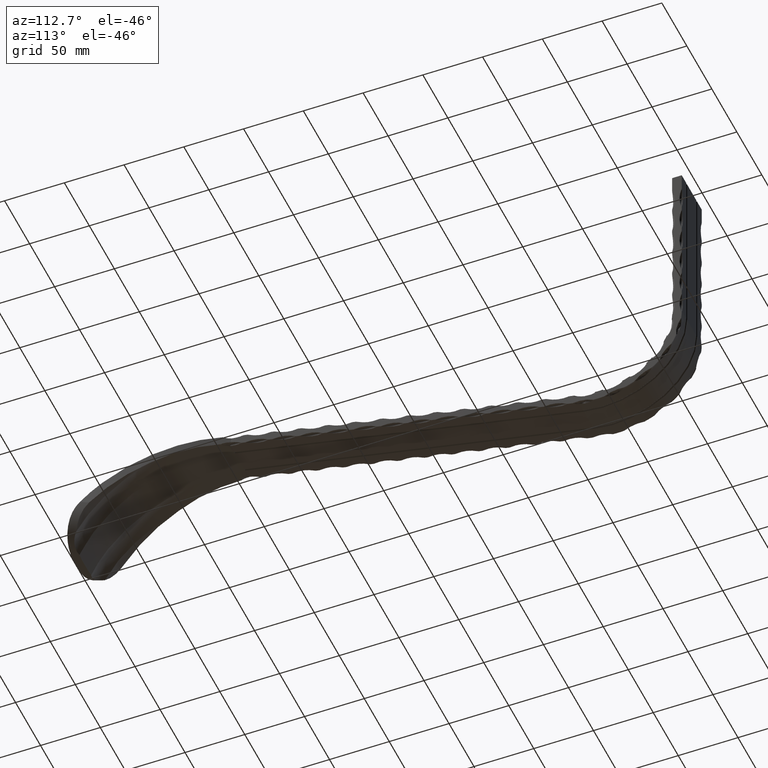
[diagram: clean part render]
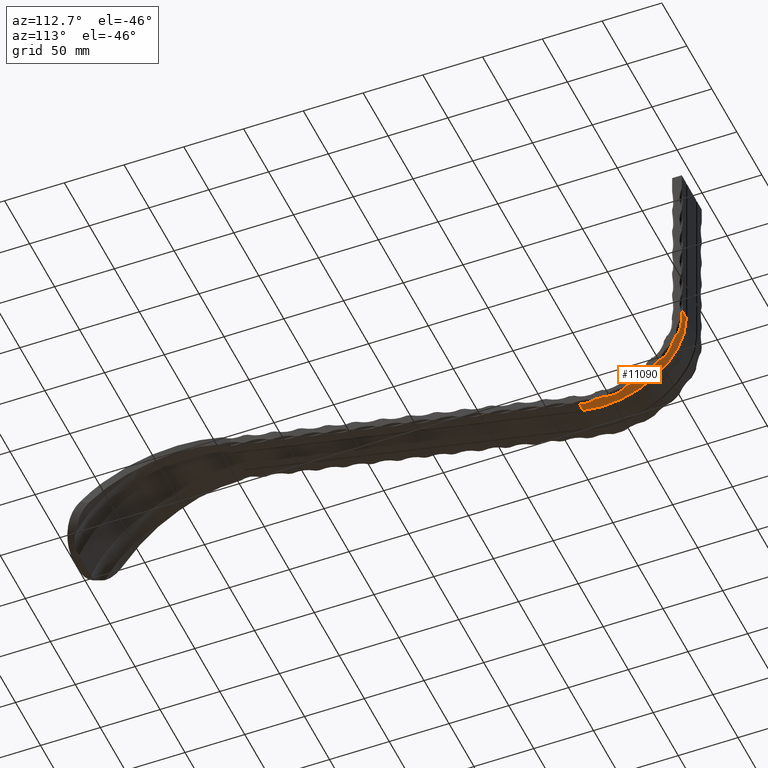
[diagram: same view with one face highlighted and labeled with its STEP entity id]
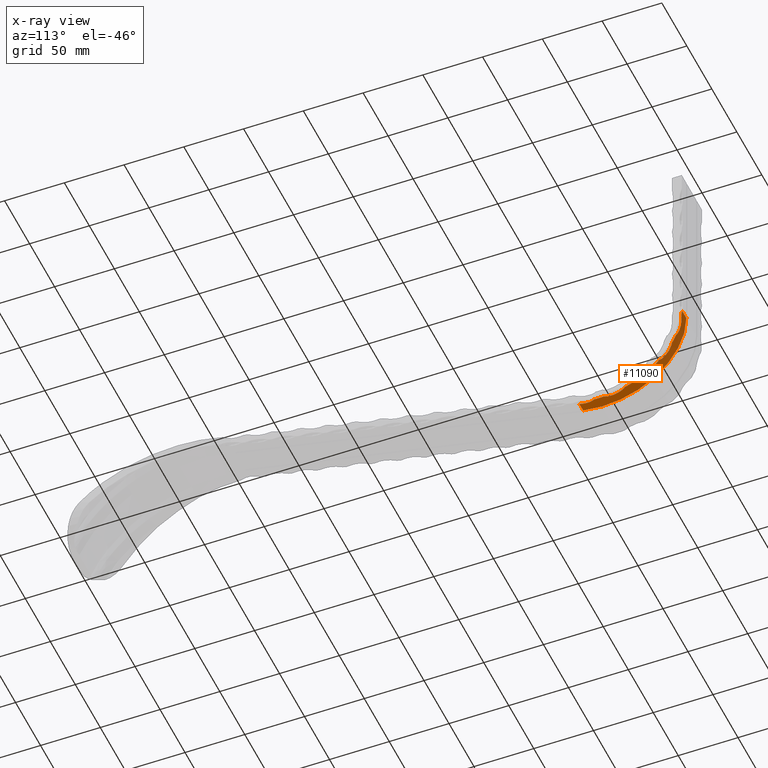
[diagram: x-ray of the same camera — body ghosted, the highlighted face saturated]
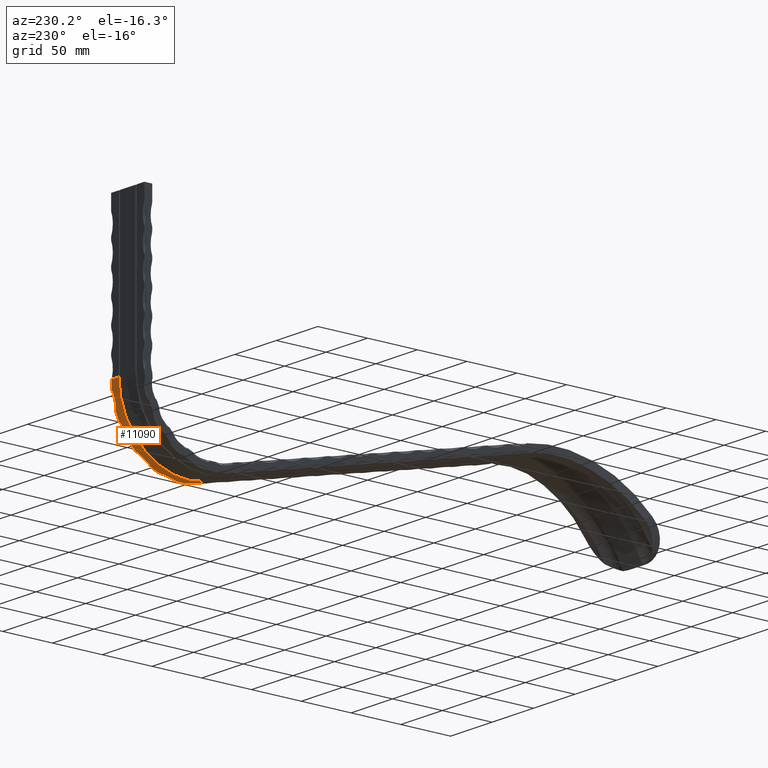
[diagram: same view with one face highlighted and labeled with its STEP entity id]
A machine part, auxiliary view. The second image highlights one B-rep face of the part: STEP entity #11090.
The next image is the same camera in x-ray: the body ghosted, the highlighted face saturated — about 0% of this face is hidden behind the body in this view.
A second angle (auxiliary view) of the same face is appended — the face is thin or edge-on in the first view.
In plain terms, the highlighted cylindrical surface (partial cylindrical patch) has radius 70 mm, axis along (-1, -0, -0).
Its self-contained STEP definition (entity closure, byte-faithful):
#76 = DIRECTION ( 'NONE',  ( -1.000000000000000000, -0.0000000000000000000, -0.0000000000000000000 ) ) ;
#84 = CARTESIAN_POINT ( 'NONE',  ( 18.03167442573956700, 493.7581213170564100, 19.74199533702874000 ) ) ;
#173 = CARTESIAN_POINT ( 'NONE',  ( 18.70264538539854400, 497.9053867037239300, 25.95573783965676600 ) ) ;
#237 = VERTEX_POINT ( 'NONE', #2260 ) ;
#302 = ORIENTED_EDGE ( 'NONE', *, *, #3026, .F. ) ;
#446 = CARTESIAN_POINT ( 'NONE',  ( 18.26275306050521900, 472.4639169216942500, 0.9014787258016056000 ) ) ;
#580 = VERTEX_POINT ( 'NONE', #777 ) ;
#597 = CARTESIAN_POINT ( 'NONE',  ( 19.78127151038886200, 442.9167374544678600, -8.146817677258066900 ) ) ;
#656 = CARTESIAN_POINT ( 'NONE',  ( 19.62175395953163800, 468.3875011450474500, -1.252231188625722200 ) ) ;
#706 = CARTESIAN_POINT ( 'NONE',  ( 18.26275306050522600, 447.6774465494257200, -7.630056567092245800 ) ) ;
#734 = CARTESIAN_POINT ( 'NONE',  ( 19.90381115990523500, 503.0257769059716100, 36.53335729489184300 ) ) ;
#759 = CARTESIAN_POINT ( 'NONE',  ( 18.53221570208327100, 456.4705758580688600, -5.779927733336522000 ) ) ;
#777 = CARTESIAN_POINT ( 'NONE',  ( 10.75000000000000000, 507.6900000000001700, 61.65778339167194100 ) ) ;
#783 = CARTESIAN_POINT ( 'NONE',  ( 19.90492214855152400, 507.1797226143675100, 53.22102053503797900 ) ) ;
#884 = CARTESIAN_POINT ( 'NONE',  ( 18.00057065333493600, 505.9815152250794800, 46.21376367742050900 ) ) ;
#948 = CARTESIAN_POINT ( 'NONE',  ( 20.00000000000000000, 468.1442942359648200, -1.370273555923187600 ) ) ;
#1009 = B_SPLINE_CURVE_WITH_KNOTS ( 'NONE', 3,
 ( #12869, #9251, #11775, #5675, #14023, #8287, #15209, #14123, #7030, #8120, #6871, #3456, #9347, #11718, #9296, #10486 ),
 .UNSPECIFIED., .F., .F.,
 ( 4, 2, 2, 2, 2, 2, 2, 4 ),
 ( 1.971829358141358600E-007, 2.935465878221215900E-005, 5.851213462861017900E-005, 0.0001168270863214134500, 0.0002334569897070199500, 0.0004667167964782203900, 0.0009332364100206250300, 0.001866275637105411100 ),
 .UNSPECIFIED. ) ;
#1025 = CARTESIAN_POINT ( 'NONE',  ( 19.57975049274751100, 433.4101195148701900, -8.211337864998848000 ) ) ;
#1084 = CARTESIAN_POINT ( 'NONE',  ( 18.15389672651034700, 422.3512582478904800, -6.643153942380054700 ) ) ;
#1105 = VERTEX_POINT ( 'NONE', #3404 ) ;
#1229 = EDGE_CURVE ( 'NONE', #13801, #5685, #1812, .T. ) ;
#1249 = CARTESIAN_POINT ( 'NONE',  ( 18.40420769604775200, 429.7987011322817900, -7.903987248742868000 ) ) ;
#1259 = CIRCLE ( 'NONE', #9733, 70.00000000000011400 ) ;
#1297 = CARTESIAN_POINT ( 'NONE',  ( 19.15727855630744600, 490.0031536792042700, 15.14482472785034700 ) ) ;
#1435 = CARTESIAN_POINT ( 'NONE',  ( 18.53312681230864100, 491.4328073049839000, 16.79951193914794800 ) ) ;
#1486 = CARTESIAN_POINT ( 'NONE',  ( 19.03385567074038000, 490.2431254470228600, 15.41602179538416800 ) ) ;
#1556 = CARTESIAN_POINT ( 'NONE',  ( 20.00000000000000000, 468.1442942359648200, -1.370273555923187600 ) ) ;
#1643 = VERTEX_POINT ( 'NONE', #948 ) ;
#1662 = CARTESIAN_POINT ( 'NONE',  ( 19.38758525809123500, 482.0926544388397000, 7.542770196508414800 ) ) ;
#1679 = CARTESIAN_POINT ( 'NONE',  ( 0.0000000000000000000, 437.6900000000000500, 61.65778339167199100 ) ) ;
#1764 = CARTESIAN_POINT ( 'NONE',  ( 18.12675820066717200, 478.1643765698373200, 4.525966628627752900 ) ) ;
#1812 = CIRCLE ( 'NONE', #14246, 70.00000000000011400 ) ;
#1814 = CARTESIAN_POINT ( 'NONE',  ( 19.68073267968736300, 459.5389641668033400, -4.845052052841795700 ) ) ;
#1819 = CARTESIAN_POINT ( 'NONE',  ( 18.70180800693928400, 470.5152956813728900, -0.1728401095036623300 ) ) ;
#1888 = CARTESIAN_POINT ( 'NONE',  ( 19.62467312767871200, 507.1489756684266600, 52.97117877660860300 ) ) ;
#2200 = VECTOR ( 'NONE', #3069, 1000.000000000000000 ) ;
#2218 = AXIS2_PLACEMENT_3D ( 'NONE', #3466, #11584, #9309 ) ;
#2251 = EDGE_CURVE ( 'NONE', #3416, #5685, #5475, .T. ) ;
#2260 = CARTESIAN_POINT ( 'NONE',  ( 19.99999999999998200, 507.1814705745103400, 53.23546082648905300 ) ) ;
#2295 = EDGE_CURVE ( 'NONE', #3244, #11110, #9186, .T. ) ;
#2341 = CARTESIAN_POINT ( 'NONE',  ( 19.86497682918189200, 433.7035627344738500, -8.228624445789497700 ) ) ;
#2378 = ORIENTED_EDGE ( 'NONE', *, *, #2295, .F. ) ;
#2398 = CARTESIAN_POINT ( 'NONE',  ( 19.32091287299523700, 432.9262264347052600, -8.180356511893469600 ) ) ;
#2412 = ORIENTED_EDGE ( 'NONE', *, *, #1229, .T. ) ;
#2494 = CARTESIAN_POINT ( 'NONE',  ( 19.47034978343860300, 498.9684013530700800, 27.82018403542123200 ) ) ;
#2510 = CARTESIAN_POINT ( 'NONE',  ( 20.00000000000000000, 489.1932475859985100, 14.25086946453094100 ) ) ;
#2630 = CARTESIAN_POINT ( 'NONE',  ( 19.33637270488110400, 507.6900000000001700, 61.65778339167193400 ) ) ;
#2802 = CARTESIAN_POINT ( 'NONE',  ( 18.16308221534285000, 473.1177649764647400, 1.280295989178122000 ) ) ;
#2908 = CARTESIAN_POINT ( 'NONE',  ( 19.90381115990524900, 468.1577466635085900, -1.363775965802723300 ) ) ;
#3006 = CARTESIAN_POINT ( 'NONE',  ( 19.38498948339167100, 443.5066674613226500, -8.100346761923811200 ) ) ;
#3026 = EDGE_CURVE ( 'NONE', #10350, #237, #6136, .T. ) ;
#3061 = CARTESIAN_POINT ( 'NONE',  ( 19.46704466986765400, 443.3359412693523600, -8.114341352790228600 ) ) ;
#3069 = DIRECTION ( 'NONE',  ( 1.000000000000000000, 0.0000000000000000000, 0.0000000000000000000 ) ) ;
#3083 = CARTESIAN_POINT ( 'NONE',  ( 19.03606639801702400, 506.9772258525497900, 51.68719931765517800 ) ) ;
#3096 = EDGE_LOOP ( 'NONE', ( #4867, #10883, #7338, #11572, #7244, #13842, #302, #8733, #2378, #6339, #14430, #8111, #3192, #2412 ) ) ;
#3133 = CARTESIAN_POINT ( 'NONE',  ( 19.38758525809123900, 507.0968223199672000, 52.56254344034406500 ) ) ;
#3160 = CARTESIAN_POINT ( 'NONE',  ( 18.12675820066717900, 454.3114705292674100, -6.356526593857835500 ) ) ;
#3185 = CARTESIAN_POINT ( 'NONE',  ( 19.67839134938319700, 503.0891871292445800, 36.69880139969850300 ) ) ;
#3192 = ORIENTED_EDGE ( 'NONE', *, *, #8656, .F. ) ;
#3244 = VERTEX_POINT ( 'NONE', #2510 ) ;
#3277 = CARTESIAN_POINT ( 'NONE',  ( 17.99971747862231900, 505.4384699251467600, 44.03089989034423700 ) ) ;
#3284 = VECTOR ( 'NONE', #11442, 1000.000000000000000 ) ;
#3404 = CARTESIAN_POINT ( 'NONE',  ( 19.99999999999998200, 482.6147371528002200, 7.975682168342098400 ) ) ;
#3416 = VERTEX_POINT ( 'NONE', #4195 ) ;
#3456 = CARTESIAN_POINT ( 'NONE',  ( 19.75367472563789700, 507.6805401092514700, 60.49812099284333300 ) ) ;
#3466 = CARTESIAN_POINT ( 'NONE',  ( 20.00000000000000000, 437.6900000000000500, 61.65778339167199100 ) ) ;
#3561 = DIRECTION ( 'NONE',  ( 0.0000000000000000000, 0.0000000000000000000, 1.000000000000000000 ) ) ;
#3568 = CARTESIAN_POINT ( 'NONE',  ( 18.01927849666384400, 426.6197226748236100, -7.469624302031332900 ) ) ;
#3674 = CARTESIAN_POINT ( 'NONE',  ( 19.99999999999998200, 499.2113705855200600, 28.26435647440083100 ) ) ;
#3868 = CARTESIAN_POINT ( 'NONE',  ( 19.15915364054227900, 498.6301312694313900, 27.21330780885399400 ) ) ;
#3985 = CARTESIAN_POINT ( 'NONE',  ( 18.70264538539853300, 480.5511185345369000, 6.309311231678822900 ) ) ;
#3988 = CARTESIAN_POINT ( 'NONE',  ( 20.00000000000000000, 437.6900000000000500, 61.65778339167199100 ) ) ;
#4044 = CARTESIAN_POINT ( 'NONE',  ( 10.75000000000000000, 421.2985749661347100, -6.396027562301617800 ) ) ;
#4090 = CARTESIAN_POINT ( 'NONE',  ( 18.00057065333493600, 476.9359758300341800, 3.675008554485857300 ) ) ;
#4160 = DIRECTION ( 'NONE',  ( -1.000000000000000000, -0.0000000000000000000, -0.0000000000000000000 ) ) ;
#4188 = CARTESIAN_POINT ( 'NONE',  ( 19.62175395953163100, 443.0946124631734100, -8.133309701690343700 ) ) ;
#4195 = CARTESIAN_POINT ( 'NONE',  ( 18.30542934712605800, 421.2985749661348200, -6.396027562301648000 ) ) ;
#4292 = CARTESIAN_POINT ( 'NONE',  ( 19.03385567074036500, 444.3878851572125100, -8.021982998573825800 ) ) ;
#4341 = CARTESIAN_POINT ( 'NONE',  ( 19.81939216052111900, 442.8858792114269200, -8.149117197164523300 ) ) ;
#4368 = CARTESIAN_POINT ( 'NONE',  ( 19.46704466986766100, 503.2028493167686100, 36.99824936176514000 ) ) ;
#4765 = AXIS2_PLACEMENT_3D ( 'NONE', #4987, #9686, #14425 ) ;
#4867 = ORIENTED_EDGE ( 'NONE', *, *, #2251, .F. ) ;
#4987 = CARTESIAN_POINT ( 'NONE',  ( 20.00000000000000000, 437.6900000000000500, 61.65778339167199100 ) ) ;
#5166 = CARTESIAN_POINT ( 'NONE',  ( 19.78321635419198500, 482.5454379656069900, 7.917753858332821100 ) ) ;
#5218 = DIRECTION ( 'NONE',  ( -1.000000000000000000, -0.0000000000000000000, -0.0000000000000000000 ) ) ;
#5265 = CARTESIAN_POINT ( 'NONE',  ( 19.99999999999998200, 482.6147371528002200, 7.975682168342098400 ) ) ;
#5322 = CARTESIAN_POINT ( 'NONE',  ( 20.00000000001525900, 433.7338929098946800, -8.230335889731156500 ) ) ;
#5366 = CARTESIAN_POINT ( 'NONE',  ( 19.15915364054225700, 481.6876330651896900, 7.212124409786276200 ) ) ;
#5384 = CARTESIAN_POINT ( 'NONE',  ( 19.03385567074036200, 503.5680935415686000, 37.98906350430160500 ) ) ;
#5412 = CARTESIAN_POINT ( 'NONE',  ( 20.00000000000000000, 442.8250363522155900, -8.153615402947803400 ) ) ;
#5475 = B_SPLINE_CURVE_WITH_KNOTS ( 'NONE', 3,
 ( #15220, #13086, #1084, #12880, #5988, #12931, #3568, #8350, #1249, #5886, #5827, #9508, #2398, #9307, #1025, #13034, #14133, #2341, #9357, #9459 ),
 .UNSPECIFIED., .F., .F.,
 ( 4, 2, 2, 2, 2, 2, 2, 2, 2, 4 ),
 ( 2.078439718499319400E-007, 0.001636354094448594100, 0.003272500344925338100, 0.006544792845878826800, 0.009817085346832312600, 0.01145323159730905800, 0.01227130472254742800, 0.01268034128516668700, 0.01288485956647625200, 0.01308937784778581700 ),
 .UNSPECIFIED. ) ;
#5496 = CARTESIAN_POINT ( 'NONE',  ( 20.00000000000000000, 503.0204098164136300, 36.51941524217824800 ) ) ;
#5522 = EDGE_CURVE ( 'NONE', #3244, #1105, #14515, .T. ) ;
#5525 = CARTESIAN_POINT ( 'NONE',  ( 18.70180800693929900, 445.4702681110720700, -7.912278181058683300 ) ) ;
#5601 = CARTESIAN_POINT ( 'NONE',  ( 19.38498948339166000, 503.2630266840039300, 37.15863005159642500 ) ) ;
#5634 = VERTEX_POINT ( 'NONE', #4044 ) ;
#5675 = CARTESIAN_POINT ( 'NONE',  ( 19.97451823923584200, 507.6695157576918400, 59.96443114431196600 ) ) ;
#5685 = VERTEX_POINT ( 'NONE', #5322 ) ;
#5827 = CARTESIAN_POINT ( 'NONE',  ( 18.93784867515258300, 431.8993635348177200, -8.104203275610947400 ) ) ;
#5886 = CARTESIAN_POINT ( 'NONE',  ( 18.78897922439004700, 431.3732760632299200, -8.058621649171744400 ) ) ;
#5988 = CARTESIAN_POINT ( 'NONE',  ( 18.02378694886902700, 423.9480673143916600, -6.982265885177447700 ) ) ;
#6136 = B_SPLINE_CURVE_WITH_KNOTS ( 'NONE', 3,
 ( #5496, #6581, #734, #10259, #12693, #3185, #11443, #4368, #5601, #12637, #5384, #14871, #9125, #15080, #10366, #7891, #3277, #884, #7788, #11544, #7992, #3083, #12584, #3133, #13787, #1888, #13892, #10149, #10201, #783, #13737, #11340 ),
 .UNSPECIFIED., .F., .F.,
 ( 4, 2, 2, 2, 2, 2, 2, 2, 2, 2, 2, 2, 2, 2, 2, 4 ),
 ( 1.968283070141940700E-007, 0.0001445492493039845800, 0.0002889016703009549200, 0.0005776065122948956700, 0.001155016196282660700, 0.002309835564258087400, 0.004619474300209067800, 0.006929113036160048700, 0.009238751772111027800, 0.01385802924401299100, 0.01616766797996399900, 0.01732248734793950100, 0.01789989703192724000, 0.01818860187392111500, 0.01833295429491804300, 0.01847730671591497200 ),
 .UNSPECIFIED. ) ;
#6183 = CARTESIAN_POINT ( 'NONE',  ( 18.12675820066717600, 496.3419610145002100, 23.41948956837762500 ) ) ;
#6331 = AXIS2_PLACEMENT_3D ( 'NONE', #3988, #5218, #14762 ) ;
#6339 = ORIENTED_EDGE ( 'NONE', *, *, #5522, .T. ) ;
#6348 = CARTESIAN_POINT ( 'NONE',  ( 19.90492214855153500, 482.6035836404405500, 7.966345330338997500 ) ) ;
#6403 = CARTESIAN_POINT ( 'NONE',  ( 19.78127151038884400, 468.2270657079516200, -1.330221281905768800 ) ) ;
#6425 = DIRECTION ( 'NONE',  ( 0.0000000000000000000, 0.0000000000000000000, 1.000000000000000000 ) ) ;
#6485 = EDGE_CURVE ( 'NONE', #1643, #11335, #11692, .T. ) ;
#6488 = CARTESIAN_POINT ( 'NONE',  ( 20.00000000000000000, 437.6900000000000500, 61.65778339167199100 ) ) ;
#6498 = CARTESIAN_POINT ( 'NONE',  ( 19.82086340258193100, 459.6617937077201100, -4.804542762219116800 ) ) ;
#6581 = CARTESIAN_POINT ( 'NONE',  ( 19.95111066697486300, 503.0204098164136300, 36.51941524217822600 ) ) ;
#6713 = CARTESIAN_POINT ( 'NONE',  ( 19.90492214855153800, 459.7049460854716500, -4.790261465754688300 ) ) ;
#6871 = CARTESIAN_POINT ( 'NONE',  ( 19.83875509575381100, 507.6765405905500200, 60.28327745015237600 ) ) ;
#6927 = EDGE_CURVE ( 'NONE', #10350, #11110, #13361, .T. ) ;
#7030 = CARTESIAN_POINT ( 'NONE',  ( 19.91154841726825400, 507.6727842315722200, 60.10498618726213500 ) ) ;
#7090 = CARTESIAN_POINT ( 'NONE',  ( 19.81939216052110500, 489.2345485854785900, 14.29577285877045000 ) ) ;
#7176 = CIRCLE ( 'NONE', #10741, 70.00000000000011400 ) ;
#7244 = ORIENTED_EDGE ( 'NONE', *, *, #7355, .F. ) ;
#7283 = CARTESIAN_POINT ( 'NONE',  ( 18.16308221534287200, 492.8430481851021300, 18.54503826731564000 ) ) ;
#7338 = ORIENTED_EDGE ( 'NONE', *, *, #10377, .F. ) ;
#7355 = EDGE_CURVE ( 'NONE', #9925, #14591, #1009, .T. ) ;
#7712 = CARTESIAN_POINT ( 'NONE',  ( 19.95175877296970100, 459.7187520669729700, -4.785681918107404600 ) ) ;
#7767 = CARTESIAN_POINT ( 'NONE',  ( 18.03167442573955600, 474.4089684077096600, 2.056735788970142300 ) ) ;
#7788 = CARTESIAN_POINT ( 'NONE',  ( 18.12675820066717200, 506.2953609454491500, 47.67479033196924800 ) ) ;
#7811 = CARTESIAN_POINT ( 'NONE',  ( 19.15727855630743500, 444.0273267777292300, -8.055627519276146800 ) ) ;
#7865 = CARTESIAN_POINT ( 'NONE',  ( 18.53312681230863700, 446.2020700279369400, -7.826736600686460000 ) ) ;
#7891 = CARTESIAN_POINT ( 'NONE',  ( 18.03167442573956300, 505.2453960031876400, 43.30469136012509100 ) ) ;
#7920 = CARTESIAN_POINT ( 'NONE',  ( 19.99999999999998600, 459.7187520669722300, -4.785681918107618700 ) ) ;
#7944 = CARTESIAN_POINT ( 'NONE',  ( 10.75000000000000000, 421.2985749661348200, -6.396027562301648000 ) ) ;
#7977 = DIRECTION ( 'NONE',  ( 0.0000000000000000000, 0.0000000000000000000, 1.000000000000000000 ) ) ;
#7992 = CARTESIAN_POINT ( 'NONE',  ( 18.70264538539854700, 506.8162466347166100, 50.60830925606138900 ) ) ;
#8101 = FACE_OUTER_BOUND ( 'NONE', #3096, .T. ) ;
#8111 = ORIENTED_EDGE ( 'NONE', *, *, #6485, .T. ) ;
#8120 = CARTESIAN_POINT ( 'NONE',  ( 19.86745427825534400, 507.6750995895014300, 60.21178640318459700 ) ) ;
#8181 = CARTESIAN_POINT ( 'NONE',  ( 19.90381115990523100, 489.2033668034491700, 14.26185982041150300 ) ) ;
#8287 = CARTESIAN_POINT ( 'NONE',  ( 19.95738993955530200, 507.6703431840512600, 59.99890836002951000 ) ) ;
#8295 = CARTESIAN_POINT ( 'NONE',  ( 19.46704466986767900, 489.5390295608787000, 14.62902434182127100 ) ) ;
#8350 = CARTESIAN_POINT ( 'NONE',  ( 18.23238671152211800, 428.7420155465769700, -7.776236430955948200 ) ) ;
#8398 = CARTESIAN_POINT ( 'NONE',  ( 18.26275306050523600, 492.3743847855748200, 17.95226983385926900 ) ) ;
#8498 = CARTESIAN_POINT ( 'NONE',  ( 19.95175877296969700, 499.2113705855202900, 28.26435647440139900 ) ) ;
#8656 = EDGE_CURVE ( 'NONE', #13801, #11335, #11538, .T. ) ;
#8733 = ORIENTED_EDGE ( 'NONE', *, *, #6927, .T. ) ;
#8749 = CARTESIAN_POINT ( 'NONE',  ( 18.53221570208326000, 479.9600120124550200, 5.856340795555401400 ) ) ;
#8806 = CARTESIAN_POINT ( 'NONE',  ( 19.81939216052112600, 468.1992167885334800, -1.343710412441232000 ) ) ;
#8900 = CARTESIAN_POINT ( 'NONE',  ( 19.62467312767871200, 459.4658638564558800, -4.869039424021244700 ) ) ;
#8956 = CARTESIAN_POINT ( 'NONE',  ( 19.38498948339165700, 468.7585419270638500, -1.070009853490856400 ) ) ;
#8973 = CARTESIAN_POINT ( 'NONE',  ( 19.99999999999998200, 499.2113705855200600, 28.26435647440083100 ) ) ;
#9048 = CARTESIAN_POINT ( 'NONE',  ( 19.15915364054227900, 458.5757818463858400, -5.154682615623712200 ) ) ;
#9059 = CARTESIAN_POINT ( 'NONE',  ( 10.75000000000000000, 507.6900000000001700, 61.65778339167194100 ) ) ;
#9125 = CARTESIAN_POINT ( 'NONE',  ( 18.53312681230863400, 504.1654666836803400, 39.71316710621665200 ) ) ;
#9186 = B_SPLINE_CURVE_WITH_KNOTS ( 'NONE', 3,
 ( #9412, #11679, #8181, #7090, #10547, #11730, #15374, #8295, #13279, #1297, #1486, #11937, #1435, #8398, #7283, #84, #9559, #14480, #6183, #12132, #173, #9607, #3868, #12075, #2494, #13181, #12030, #13331, #10747, #10843, #8498, #3674 ),
 .UNSPECIFIED., .F., .F.,
 ( 4, 2, 2, 2, 2, 2, 2, 2, 2, 2, 2, 2, 2, 2, 2, 4 ),
 ( 1.968283070132374800E-007, 0.0001445492493039354100, 0.0002889016703008576200, 0.0005776065122947808500, 0.001155016196282523700, 0.002309835564258016700, 0.004619474300209002800, 0.006929113036159989700, 0.009238751772110975800, 0.01385802924401293900, 0.01616766797996392600, 0.01732248734793938000, 0.01789989703192710500, 0.01818860187392096900, 0.01833295429491790100, 0.01847730671591483000 ),
 .UNSPECIFIED. ) ;
#9251 = CARTESIAN_POINT ( 'NONE',  ( 19.99015887259896500, 507.6688470321009300, 59.93703702515712500 ) ) ;
#9296 = CARTESIAN_POINT ( 'NONE',  ( 19.43390411398070900, 507.6900000000001700, 61.36544253903195300 ) ) ;
#9307 = CARTESIAN_POINT ( 'NONE',  ( 19.51066283442290900, 433.2908108206338500, -8.203951238288398800 ) ) ;
#9309 = DIRECTION ( 'NONE',  ( 0.0000000000000000000, 0.0000000000000000000, 1.000000000000000000 ) ) ;
#9347 = CARTESIAN_POINT ( 'NONE',  ( 19.69845402538064500, 507.6827773204306600, 60.64193352752589300 ) ) ;
#9357 = CARTESIAN_POINT ( 'NONE',  ( 19.93047013486185300, 433.7338929099163900, -8.230335889732385700 ) ) ;
#9412 = CARTESIAN_POINT ( 'NONE',  ( 20.00000000000000000, 489.1932475859985100, 14.25086946453094100 ) ) ;
#9459 = CARTESIAN_POINT ( 'NONE',  ( 20.00000000001525900, 433.7338929098946800, -8.230335889731156500 ) ) ;
#9508 = CARTESIAN_POINT ( 'NONE',  ( 19.21866791881242200, 432.6711595615398100, -8.162541759839621500 ) ) ;
#9559 = CARTESIAN_POINT ( 'NONE',  ( 17.99971747862232300, 494.2047858075896400, 20.34626944833947700 ) ) ;
#9607 = CARTESIAN_POINT ( 'NONE',  ( 19.03606639801702000, 498.4519362715537900, 26.89977260781158800 ) ) ;
#9686 = DIRECTION ( 'NONE',  ( -1.000000000000000000, -0.0000000000000000000, -0.0000000000000000000 ) ) ;
#9733 = AXIS2_PLACEMENT_3D ( 'NONE', #6488, #9856, #13492 ) ;
#9822 = CARTESIAN_POINT ( 'NONE',  ( 19.95111066697486600, 468.1442942359648200, -1.370273555923187600 ) ) ;
#9856 = DIRECTION ( 'NONE',  ( -1.000000000000000000, -0.0000000000000000000, -0.0000000000000000000 ) ) ;
#9925 = VERTEX_POINT ( 'NONE', #12035 ) ;
#10030 = CARTESIAN_POINT ( 'NONE',  ( 19.95175877296970400, 482.6147371528007900, 7.975682168342500800 ) ) ;
#10077 = CARTESIAN_POINT ( 'NONE',  ( 19.46704466986765100, 468.6049330982940500, -1.145822839991020400 ) ) ;
#10149 = CARTESIAN_POINT ( 'NONE',  ( 19.78321635419200300, 507.1705530070753400, 53.14580106311972000 ) ) ;
#10201 = CARTESIAN_POINT ( 'NONE',  ( 19.82086340258191700, 507.1742295905278300, 53.17589947761015200 ) ) ;
#10229 = CARTESIAN_POINT ( 'NONE',  ( 17.99971747862231600, 450.6502529237158100, -7.136068392634930600 ) ) ;
#10230 = EDGE_CURVE ( 'NONE', #580, #14591, #11617, .T. ) ;
#10259 = CARTESIAN_POINT ( 'NONE',  ( 19.81939216052111500, 503.0422980320527100, 36.57636252822789700 ) ) ;
#10350 = VERTEX_POINT ( 'NONE', #15117 ) ;
#10366 = CARTESIAN_POINT ( 'NONE',  ( 18.16308221534286500, 504.8347648271267200, 41.85505447427839000 ) ) ;
#10377 = EDGE_CURVE ( 'NONE', #580, #5634, #7176, .T. ) ;
#10486 = CARTESIAN_POINT ( 'NONE',  ( 19.33637270488110400, 507.6900000000001700, 61.65778339167193400 ) ) ;
#10547 = CARTESIAN_POINT ( 'NONE',  ( 19.78127151038885100, 489.2554832026883700, 14.31856015254712000 ) ) ;
#10667 = EDGE_CURVE ( 'NONE', #9925, #237, #1259, .T. ) ;
#10741 = AXIS2_PLACEMENT_3D ( 'NONE', #13881, #13827, #7977 ) ;
#10747 = CARTESIAN_POINT ( 'NONE',  ( 19.82086340258191000, 499.1827283481902100, 28.21163448306843000 ) ) ;
#10843 = CARTESIAN_POINT ( 'NONE',  ( 19.90492214855152400, 499.2044334890484300, 28.25157155850766700 ) ) ;
#10883 = ORIENTED_EDGE ( 'NONE', *, *, #11203, .F. ) ;
#11068 = CARTESIAN_POINT ( 'NONE',  ( 19.47034978343860300, 482.2254190671521900, 7.652023966447417900 ) ) ;
#11090 = ADVANCED_FACE ( 'NONE', ( #8101 ), #14025, .T. ) ;
#11110 = VERTEX_POINT ( 'NONE', #8973 ) ;
#11170 = CARTESIAN_POINT ( 'NONE',  ( 19.62467312767871500, 482.4102409954516600, 7.805147003522345800 ) ) ;
#11203 = EDGE_CURVE ( 'NONE', #5634, #3416, #11971, .T. ) ;
#11220 = CARTESIAN_POINT ( 'NONE',  ( 19.03606639801701300, 481.4066012110164900, 6.986118045934970800 ) ) ;
#11315 = CARTESIAN_POINT ( 'NONE',  ( 19.78321635419204200, 459.6330032240431900, -4.814058006323274500 ) ) ;
#11335 = VERTEX_POINT ( 'NONE', #12892 ) ;
#11340 = CARTESIAN_POINT ( 'NONE',  ( 19.99999999999998200, 507.1814705745103400, 53.23546082648905300 ) ) ;
#11370 = CARTESIAN_POINT ( 'NONE',  ( 19.67839134938320500, 443.0166205879511900, -8.139290847536607000 ) ) ;
#11418 = CARTESIAN_POINT ( 'NONE',  ( 19.90381115990524200, 442.8399356889622100, -8.152521671398719900 ) ) ;
#11442 = DIRECTION ( 'NONE',  ( 1.000000000000000000, 0.0000000000000000000, 0.0000000000000000000 ) ) ;
#11443 = CARTESIAN_POINT ( 'NONE',  ( 19.62175395953165200, 503.1170501707789000, 36.77189146484254700 ) ) ;
#11538 = B_SPLINE_CURVE_WITH_KNOTS ( 'NONE', 3,
 ( #5412, #14900, #11418, #4341, #597, #11370, #4188, #3061, #3006, #7811, #4292, #5525, #7865, #706, #12667, #14953, #10229, #13814, #3160, #759, #13709, #12558, #9048, #13602, #12611, #8900, #1814, #11315, #6498, #6713, #7712, #7920 ),
 .UNSPECIFIED., .F., .F.,
 ( 4, 2, 2, 2, 2, 2, 2, 2, 2, 2, 2, 2, 2, 2, 2, 4 ),
 ( 1.968283070039613600E-007, 0.0001445492493039891600, 0.0002889016703009743800, 0.0005776065122948286700, 0.001155016196282531500, 0.002309835564258090400, 0.004619474300209047900, 0.006929113036160006200, 0.009238751772110963600, 0.01385802924401287700, 0.01616766797996391600, 0.01732248734793943200, 0.01789989703192718800, 0.01818860187392106600, 0.01833295429491806400, 0.01847730671591506200 ),
 .UNSPECIFIED. ) ;
#11544 = CARTESIAN_POINT ( 'NONE',  ( 18.53221570208327100, 506.6949750065667800, 49.87354240279724100 ) ) ;
#11572 = ORIENTED_EDGE ( 'NONE', *, *, #10230, .T. ) ;
#11584 = DIRECTION ( 'NONE',  ( -1.000000000000000000, -0.0000000000000000000, -0.0000000000000000000 ) ) ;
#11617 = LINE ( 'NONE', #9059, #2200 ) ;
#11679 = CARTESIAN_POINT ( 'NONE',  ( 19.95111066697486600, 489.1932475859986200, 14.25086946453095600 ) ) ;
#11692 = CIRCLE ( 'NONE', #4765, 70.00000000000011400 ) ;
#11718 = CARTESIAN_POINT ( 'NONE',  ( 19.53660120613172100, 507.6881678951771200, 61.07485696920230800 ) ) ;
#11730 = CARTESIAN_POINT ( 'NONE',  ( 19.67839134938318700, 489.3231879379715700, 14.39237994894555000 ) ) ;
#11775 = CARTESIAN_POINT ( 'NONE',  ( 19.98457802658764800, 507.6691162915560700, 59.94800253800006800 ) ) ;
#11937 = CARTESIAN_POINT ( 'NONE',  ( 18.70180800693930900, 490.9575566308939800, 16.23649488409855800 ) ) ;
#11971 = LINE ( 'NONE', #7944, #3284 ) ;
#12030 = CARTESIAN_POINT ( 'NONE',  ( 19.68073267968733100, 499.1208499362012400, 28.09806001023979100 ) ) ;
#12035 = CARTESIAN_POINT ( 'NONE',  ( 20.00000000000000000, 507.6688470321007000, 59.93703702515711000 ) ) ;
#12075 = CARTESIAN_POINT ( 'NONE',  ( 19.38758525809124600, 498.8851325332331600, 27.66975419656009900 ) ) ;
#12132 = CARTESIAN_POINT ( 'NONE',  ( 18.53221570208327400, 497.5223423689397500, 25.31709382767547100 ) ) ;
#12250 = CARTESIAN_POINT ( 'NONE',  ( 19.68073267968732800, 482.4693927756722500, 7.854341680528550600 ) ) ;
#12348 = CARTESIAN_POINT ( 'NONE',  ( 17.99971747862231600, 475.0465921221470500, 2.454344098102065000 ) ) ;
#12459 = CARTESIAN_POINT ( 'NONE',  ( 18.53312681230862300, 471.1643254931399800, 0.1758885972832733300 ) ) ;
#12558 = CARTESIAN_POINT ( 'NONE',  ( 19.03606639801702700, 458.2313194538469400, -5.261469504742789700 ) ) ;
#12584 = CARTESIAN_POINT ( 'NONE',  ( 19.15915364054226100, 507.0275974716590200, 52.04429941503632800 ) ) ;
#12611 = CARTESIAN_POINT ( 'NONE',  ( 19.47034978343861400, 459.2376753535085600, -4.943442493756718300 ) ) ;
#12637 = CARTESIAN_POINT ( 'NONE',  ( 19.15727855630744600, 503.4447027568576200, 37.64860937664667500 ) ) ;
#12667 = CARTESIAN_POINT ( 'NONE',  ( 18.16308221534285700, 448.4247966122885600, -7.518308272708025300 ) ) ;
#12693 = CARTESIAN_POINT ( 'NONE',  ( 19.78127151038885500, 503.0533828926938300, 36.60525274837135600 ) ) ;
#12869 = CARTESIAN_POINT ( 'NONE',  ( 20.00000000000000000, 507.6688470321007000, 59.93703702515711000 ) ) ;
#12880 = CARTESIAN_POINT ( 'NONE',  ( 18.05557403428984000, 423.4130235339212600, -6.872961403894353600 ) ) ;
#12892 = CARTESIAN_POINT ( 'NONE',  ( 19.99999999999998600, 459.7187520669722300, -4.785681918107618700 ) ) ;
#12931 = CARTESIAN_POINT ( 'NONE',  ( 17.98015556790693400, 425.5538496685425700, -7.290763872129465600 ) ) ;
#13034 = CARTESIAN_POINT ( 'NONE',  ( 19.70738539783899400, 433.5705658284278500, -8.220919606041739800 ) ) ;
#13086 = CARTESIAN_POINT ( 'NONE',  ( 18.22041043354988700, 421.8233748797900900, -6.522430747103164200 ) ) ;
#13142 = EDGE_CURVE ( 'NONE', #1643, #1105, #15254, .T. ) ;
#13181 = CARTESIAN_POINT ( 'NONE',  ( 19.62467312767869400, 499.0839409553263400, 28.03055611050228500 ) ) ;
#13279 = CARTESIAN_POINT ( 'NONE',  ( 19.38498948339167100, 489.6539819793491700, 14.75602521853425100 ) ) ;
#13331 = CARTESIAN_POINT ( 'NONE',  ( 19.78321635419199300, 499.1682381938190900, 28.18499865668704300 ) ) ;
#13361 = CIRCLE ( 'NONE', #2218, 70.00000000000011400 ) ;
#13452 = CARTESIAN_POINT ( 'NONE',  ( 19.82086340258191400, 482.5687098798353500, 7.937192218059852400 ) ) ;
#13492 = DIRECTION ( 'NONE',  ( 0.0000000000000000000, 0.0000000000000000000, 1.000000000000000000 ) ) ;
#13602 = CARTESIAN_POINT ( 'NONE',  ( 19.38758525809124900, 459.0740311877070800, -4.996200618969904600 ) ) ;
#13709 = CARTESIAN_POINT ( 'NONE',  ( 18.70264538539854400, 457.1868595450082500, -5.576146438134807100 ) ) ;
#13737 = CARTESIAN_POINT ( 'NONE',  ( 19.95175877296969700, 507.1814705745104600, 53.23546082648972800 ) ) ;
#13787 = CARTESIAN_POINT ( 'NONE',  ( 19.47034978343860000, 507.1189193681262300, 52.73305605934783100 ) ) ;
#13801 = VERTEX_POINT ( 'NONE', #15081 ) ;
#13814 = CARTESIAN_POINT ( 'NONE',  ( 18.00057065333494000, 452.8561784364829400, -6.695971650053413900 ) ) ;
#13827 = DIRECTION ( 'NONE',  ( -1.000000000000000000, -0.0000000000000000000, -0.0000000000000000000 ) ) ;
#13842 = ORIENTED_EDGE ( 'NONE', *, *, #10667, .T. ) ;
#13881 = CARTESIAN_POINT ( 'NONE',  ( 10.75000000000000000, 437.6900000000000500, 61.65778339167199100 ) ) ;
#13892 = CARTESIAN_POINT ( 'NONE',  ( 19.68073267968735300, 507.1584664685423700, 53.04752649472884200 ) ) ;
#14023 = CARTESIAN_POINT ( 'NONE',  ( 19.97014091412879500, 507.6697226034177100, 59.97299884141632700 ) ) ;
#14025 = CYLINDRICAL_SURFACE ( 'NONE', #14132, 70.00000000000011400 ) ;
#14123 = CARTESIAN_POINT ( 'NONE',  ( 19.92637355298116500, 507.6719863465958200, 60.06944075779628600 ) ) ;
#14132 = AXIS2_PLACEMENT_3D ( 'NONE', #1679, #4160, #6425 ) ;
#14133 = CARTESIAN_POINT ( 'NONE',  ( 19.75456051881626600, 433.6216621459005900, -8.223904550169209000 ) ) ;
#14182 = CARTESIAN_POINT ( 'NONE',  ( 20.00000000000000000, 437.6900000000000500, 61.65778339167199100 ) ) ;
#14246 = AXIS2_PLACEMENT_3D ( 'NONE', #14182, #76, #3561 ) ;
#14425 = DIRECTION ( 'NONE',  ( 0.0000000000000000000, 0.0000000000000000000, 1.000000000000000000 ) ) ;
#14430 = ORIENTED_EDGE ( 'NONE', *, *, #13142, .F. ) ;
#14480 = CARTESIAN_POINT ( 'NONE',  ( 18.00057065333494300, 495.5126981163920200, 22.17633991233557800 ) ) ;
#14515 = CIRCLE ( 'NONE', #6331, 70.00000000000011400 ) ;
#14591 = VERTEX_POINT ( 'NONE', #2630 ) ;
#14646 = CARTESIAN_POINT ( 'NONE',  ( 19.15727855630742800, 469.2262483592308500, -0.8369076704601228200 ) ) ;
#14756 = CARTESIAN_POINT ( 'NONE',  ( 19.03385567074035100, 469.5491522421143000, -0.6729949460981049500 ) ) ;
#14762 = DIRECTION ( 'NONE',  ( 0.0000000000000000000, 0.0000000000000000000, 1.000000000000000000 ) ) ;
#14803 = CARTESIAN_POINT ( 'NONE',  ( 19.67839134938319400, 468.3171773764367500, -1.286481360518662900 ) ) ;
#14871 = CARTESIAN_POINT ( 'NONE',  ( 18.70180800693929500, 503.9306348497833000, 39.01480801714570400 ) ) ;
#14900 = CARTESIAN_POINT ( 'NONE',  ( 19.95111066697487000, 442.8250363522156500, -8.153615402947808700 ) ) ;
#14953 = CARTESIAN_POINT ( 'NONE',  ( 18.03167442573955600, 449.9110776537139000, -7.271258218144422100 ) ) ;
#15080 = CARTESIAN_POINT ( 'NONE',  ( 18.26275306050522900, 504.6170021169845700, 41.13145292658086300 ) ) ;
#15081 = CARTESIAN_POINT ( 'NONE',  ( 20.00000000000000000, 442.8250363522155900, -8.153615402947803400 ) ) ;
#15117 = CARTESIAN_POINT ( 'NONE',  ( 20.00000000000000000, 503.0204098164136300, 36.51941524217824800 ) ) ;
#15209 = CARTESIAN_POINT ( 'NONE',  ( 19.94954618652852600, 507.6707585629546300, 60.01652098488983000 ) ) ;
#15220 = CARTESIAN_POINT ( 'NONE',  ( 18.30542934712605800, 421.2985749661348200, -6.396027562301648000 ) ) ;
#15254 = B_SPLINE_CURVE_WITH_KNOTS ( 'NONE', 3,
 ( #1556, #9822, #2908, #8806, #6403, #14803, #656, #10077, #8956, #14646, #14756, #1819, #12459, #446, #2802, #7767, #12348, #4090, #1764, #8749, #3985, #11220, #5366, #1662, #11068, #11170, #12250, #5166, #13452, #6348, #10030, #5265 ),
 .UNSPECIFIED., .F., .F.,
 ( 4, 2, 2, 2, 2, 2, 2, 2, 2, 2, 2, 2, 2, 2, 2, 4 ),
 ( 1.968283070109157400E-007, 0.0001445492493039750600, 0.0002889016703009392000, 0.0005776065122947622100, 0.001155016196282534700, 0.002309835564258079200, 0.004619474300209312400, 0.006929113036160544800, 0.009238751772111778900, 0.01385802924401424400, 0.01616766797996554300, 0.01732248734794113200, 0.01789989703192892300, 0.01818860187392276600, 0.01833295429491969500, 0.01847730671591662000 ),
 .UNSPECIFIED. ) ;
#15374 = CARTESIAN_POINT ( 'NONE',  ( 19.62175395953165600, 489.3759827932944400, 14.45009658396308800 ) ) ;